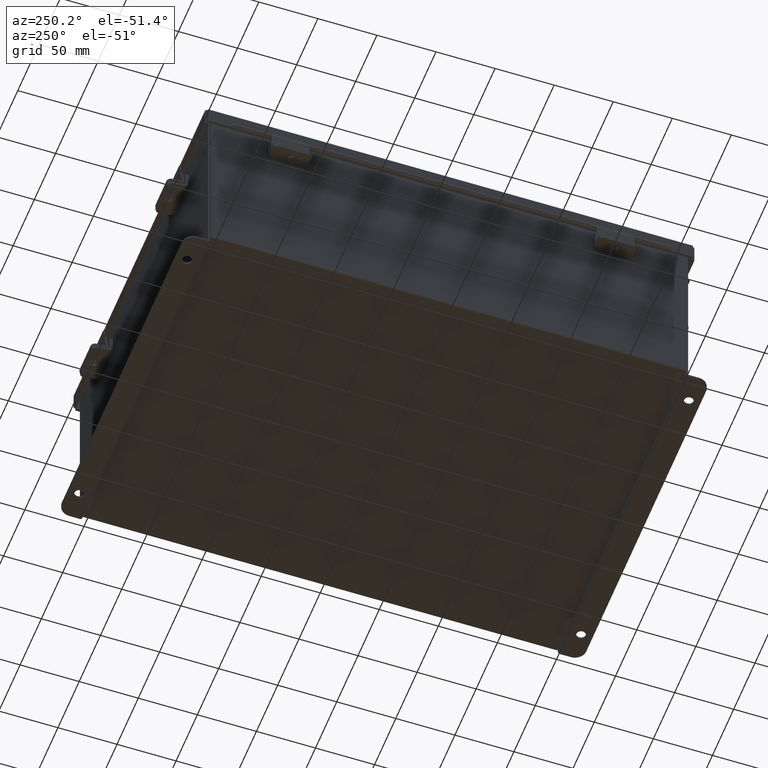
[diagram: clean part render]
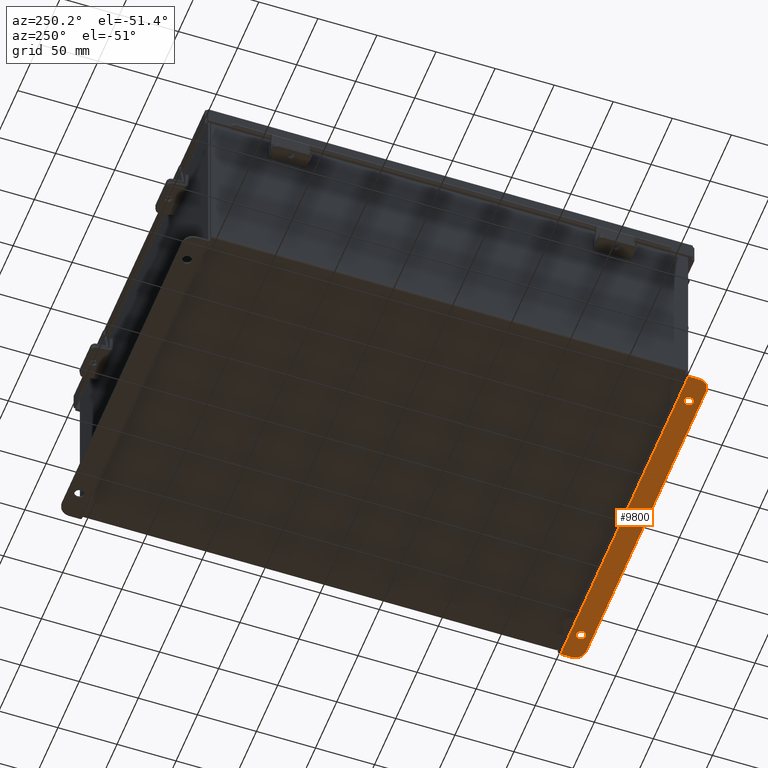
[diagram: same view with one face highlighted and labeled with its STEP entity id]
A machine part, auxiliary view. The second image highlights one B-rep face of the part: STEP entity #9800.
In plain terms, the highlighted planar face has unit normal (0, -0, 1).
Its self-contained STEP definition (entity closure, byte-faithful):
#27 = CARTESIAN_POINT ( 'NONE',  ( 0.0000000000000000000, -1.092739197465705300E-014, -3.187000000000000300 ) ) ;
#61 = CARTESIAN_POINT ( 'NONE',  ( -5.925300000000000000, 0.01299999999999245900, -3.186999999999995800 ) ) ;
#238 = EDGE_CURVE ( 'NONE', #666, #4876, #2090, .T. ) ;
#487 = CARTESIAN_POINT ( 'NONE',  ( -4.987799999999992000, 0.2067999999999996000, -3.187000000000000700 ) ) ;
#507 = CIRCLE ( 'NONE', #3407, 0.1560000000000001900 ) ;
#541 = CIRCLE ( 'NONE', #5046, 0.1560000000000001900 ) ;
#666 = VERTEX_POINT ( 'NONE', #4424 ) ;
#834 = CARTESIAN_POINT ( 'NONE',  ( -4.987800000000000900, 0.5187999999999999300, -3.187000000000001600 ) ) ;
#871 = ORIENTED_EDGE ( 'NONE', *, *, #3177, .T. ) ;
#915 = DIRECTION ( 'NONE',  ( 0.0000000000000000000, -3.362274453740631800E-015, -1.000000000000000000 ) ) ;
#1019 = AXIS2_PLACEMENT_3D ( 'NONE', #5184, #8303, #3488 ) ;
#1021 = VECTOR ( 'NONE', #7762, 39.37007874015748100 ) ;
#1176 = ORIENTED_EDGE ( 'NONE', *, *, #2930, .T. ) ;
#1484 = VERTEX_POINT ( 'NONE', #6400 ) ;
#1561 = PLANE ( 'NONE',  #4430 ) ;
#1706 = ORIENTED_EDGE ( 'NONE', *, *, #5071, .F. ) ;
#1834 = DIRECTION ( 'NONE',  ( 0.0000000000000000000, -3.362274453740631800E-015, -1.000000000000000000 ) ) ;
#1895 = VECTOR ( 'NONE', #7131, 39.37007874015748100 ) ;
#1916 = LINE ( 'NONE', #2538, #1021 ) ;
#2090 = CIRCLE ( 'NONE', #3967, 0.3750000000000000600 ) ;
#2260 = ORIENTED_EDGE ( 'NONE', *, *, #3366, .F. ) ;
#2264 = DIRECTION ( 'NONE',  ( -4.919856193148104900E-031, -1.000000000000000000, 3.702694488566362300E-015 ) ) ;
#2345 = CARTESIAN_POINT ( 'NONE',  ( 5.550299999999999100, 0.7378000000000000100, -3.187000000000002900 ) ) ;
#2347 = VERTEX_POINT ( 'NONE', #61 ) ;
#2538 = CARTESIAN_POINT ( 'NONE',  ( 5.925299999999999100, -1.092739197465705300E-014, -3.187000000000000300 ) ) ;
#2812 = CIRCLE ( 'NONE', #1019, 0.1560000000000001900 ) ;
#2847 = ORIENTED_EDGE ( 'NONE', *, *, #8393, .F. ) ;
#2886 = DIRECTION ( 'NONE',  ( 0.0000000000000000000, -1.000000000000000000, 4.370956789862820400E-015 ) ) ;
#2930 = EDGE_CURVE ( 'NONE', #4876, #9185, #7085, .T. ) ;
#3177 = EDGE_CURVE ( 'NONE', #2347, #666, #7179, .T. ) ;
#3366 = EDGE_CURVE ( 'NONE', #9473, #8029, #507, .T. ) ;
#3407 = AXIS2_PLACEMENT_3D ( 'NONE', #8722, #915, #5673 ) ;
#3488 = DIRECTION ( 'NONE',  ( 0.0000000000000000000, 1.000000000000000000, -3.502369222646487000E-015 ) ) ;
#3603 = ORIENTED_EDGE ( 'NONE', *, *, #6509, .T. ) ;
#3633 = AXIS2_PLACEMENT_3D ( 'NONE', #5369, #5034, #7980 ) ;
#3877 = EDGE_LOOP ( 'NONE', ( #2260, #8141 ) ) ;
#3967 = AXIS2_PLACEMENT_3D ( 'NONE', #9323, #7289, #2886 ) ;
#4304 = CARTESIAN_POINT ( 'NONE',  ( 4.987799999999998200, 0.3627999999999997300, -3.187000000000001200 ) ) ;
#4367 = VERTEX_POINT ( 'NONE', #5825 ) ;
#4412 = DIRECTION ( 'NONE',  ( 0.0000000000000000000, -3.362274453740631800E-015, -1.000000000000000000 ) ) ;
#4424 = CARTESIAN_POINT ( 'NONE',  ( -5.925300000000001800, 0.3627999999999920700, -3.187000000000001200 ) ) ;
#4430 = AXIS2_PLACEMENT_3D ( 'NONE', #27, #6706, #2264 ) ;
#4434 = FACE_BOUND ( 'NONE', #4494, .T. ) ;
#4494 = EDGE_LOOP ( 'NONE', ( #1706, #2847 ) ) ;
#4654 = DIRECTION ( 'NONE',  ( 1.000000000000000000, 4.910036603141682400E-031, 0.0000000000000000000 ) ) ;
#4674 = CARTESIAN_POINT ( 'NONE',  ( 4.987799999999998200, 0.5187999999999999300, -3.187000000000001600 ) ) ;
#4737 = VECTOR ( 'NONE', #5217, 39.37007874015748100 ) ;
#4876 = VERTEX_POINT ( 'NONE', #6545 ) ;
#5034 = DIRECTION ( 'NONE',  ( -0.0000000000000000000, -3.702694488566362300E-015, -1.000000000000000000 ) ) ;
#5046 = AXIS2_PLACEMENT_3D ( 'NONE', #6238, #1834, #6994 ) ;
#5071 = EDGE_CURVE ( 'NONE', #8391, #8134, #9266, .T. ) ;
#5161 = ORIENTED_EDGE ( 'NONE', *, *, #6836, .F. ) ;
#5184 = CARTESIAN_POINT ( 'NONE',  ( -4.987800000000000900, 0.3627999999999997300, -3.187000000000001200 ) ) ;
#5217 = DIRECTION ( 'NONE',  ( 4.919856193148104900E-031, 1.000000000000000000, -3.702694488566362300E-015 ) ) ;
#5369 = CARTESIAN_POINT ( 'NONE',  ( 5.550299999999999100, 0.3628000000000008400, -3.187000000000001200 ) ) ;
#5494 = EDGE_CURVE ( 'NONE', #8029, #9473, #2812, .T. ) ;
#5551 = EDGE_CURVE ( 'NONE', #9185, #4367, #8373, .T. ) ;
#5673 = DIRECTION ( 'NONE',  ( 0.0000000000000000000, 1.000000000000000000, -3.502369222646487000E-015 ) ) ;
#5825 = CARTESIAN_POINT ( 'NONE',  ( 5.925299999999999100, 0.3628000000000008400, -3.187000000000000700 ) ) ;
#6150 = LINE ( 'NONE', #9680, #1895 ) ;
#6238 = CARTESIAN_POINT ( 'NONE',  ( 4.987799999999998200, 0.3627999999999997300, -3.187000000000001200 ) ) ;
#6372 = AXIS2_PLACEMENT_3D ( 'NONE', #4304, #4412, #8125 ) ;
#6400 = CARTESIAN_POINT ( 'NONE',  ( 5.925299999999999100, 0.01300000000000010700, -3.187000000000000300 ) ) ;
#6509 = EDGE_CURVE ( 'NONE', #4367, #1484, #1916, .T. ) ;
#6545 = CARTESIAN_POINT ( 'NONE',  ( -5.550299999999999100, 0.7377999999999912400, -3.187000000000002900 ) ) ;
#6706 = DIRECTION ( 'NONE',  ( 0.0000000000000000000, 3.702694488566362300E-015, 1.000000000000000000 ) ) ;
#6836 = EDGE_CURVE ( 'NONE', #2347, #1484, #6150, .T. ) ;
#6994 = DIRECTION ( 'NONE',  ( 0.0000000000000000000, 1.000000000000000000, -3.502369222646487000E-015 ) ) ;
#7085 = LINE ( 'NONE', #9395, #8017 ) ;
#7131 = DIRECTION ( 'NONE',  ( 1.000000000000000000, 4.910036603141682400E-031, -0.0000000000000000000 ) ) ;
#7172 = CARTESIAN_POINT ( 'NONE',  ( -5.925300000000001800, -1.966930555438269700E-014, -3.186999999999995800 ) ) ;
#7179 = LINE ( 'NONE', #7172, #4737 ) ;
#7289 = DIRECTION ( 'NONE',  ( -0.0000000000000000000, -3.702694488566362300E-015, -1.000000000000000000 ) ) ;
#7354 = ORIENTED_EDGE ( 'NONE', *, *, #5551, .T. ) ;
#7395 = CARTESIAN_POINT ( 'NONE',  ( 4.987800000000007100, 0.2067999999999996000, -3.187000000000000700 ) ) ;
#7762 = DIRECTION ( 'NONE',  ( -4.919856193148104900E-031, -1.000000000000000000, 3.702694488566362300E-015 ) ) ;
#7980 = DIRECTION ( 'NONE',  ( 0.0000000000000000000, -1.000000000000000000, 4.370956789862820400E-015 ) ) ;
#8017 = VECTOR ( 'NONE', #4654, 39.37007874015748100 ) ;
#8029 = VERTEX_POINT ( 'NONE', #487 ) ;
#8125 = DIRECTION ( 'NONE',  ( 0.0000000000000000000, 1.000000000000000000, -3.502369222646487000E-015 ) ) ;
#8134 = VERTEX_POINT ( 'NONE', #7395 ) ;
#8141 = ORIENTED_EDGE ( 'NONE', *, *, #5494, .F. ) ;
#8234 = FACE_OUTER_BOUND ( 'NONE', #9710, .T. ) ;
#8303 = DIRECTION ( 'NONE',  ( 0.0000000000000000000, -3.362274453740631800E-015, -1.000000000000000000 ) ) ;
#8373 = CIRCLE ( 'NONE', #3633, 0.3750000000000000600 ) ;
#8391 = VERTEX_POINT ( 'NONE', #4674 ) ;
#8393 = EDGE_CURVE ( 'NONE', #8134, #8391, #541, .T. ) ;
#8498 = FACE_BOUND ( 'NONE', #3877, .T. ) ;
#8722 = CARTESIAN_POINT ( 'NONE',  ( -4.987800000000000900, 0.3627999999999997300, -3.187000000000001200 ) ) ;
#8931 = ORIENTED_EDGE ( 'NONE', *, *, #238, .T. ) ;
#9185 = VERTEX_POINT ( 'NONE', #2345 ) ;
#9266 = CIRCLE ( 'NONE', #6372, 0.1560000000000001900 ) ;
#9323 = CARTESIAN_POINT ( 'NONE',  ( -5.550299999999999100, 0.3627999999999986800, -3.187000000000001200 ) ) ;
#9395 = CARTESIAN_POINT ( 'NONE',  ( -2.035385365534024800E-024, 0.7378000000000000100, -3.187000000000002900 ) ) ;
#9473 = VERTEX_POINT ( 'NONE', #834 ) ;
#9680 = CARTESIAN_POINT ( 'NONE',  ( 5.925299999999999100, 0.01300000000000120000, -3.187000000000000300 ) ) ;
#9710 = EDGE_LOOP ( 'NONE', ( #871, #8931, #1176, #7354, #3603, #5161 ) ) ;
#9800 = ADVANCED_FACE ( 'NONE', ( #8498, #4434, #8234 ), #1561, .F. ) ;